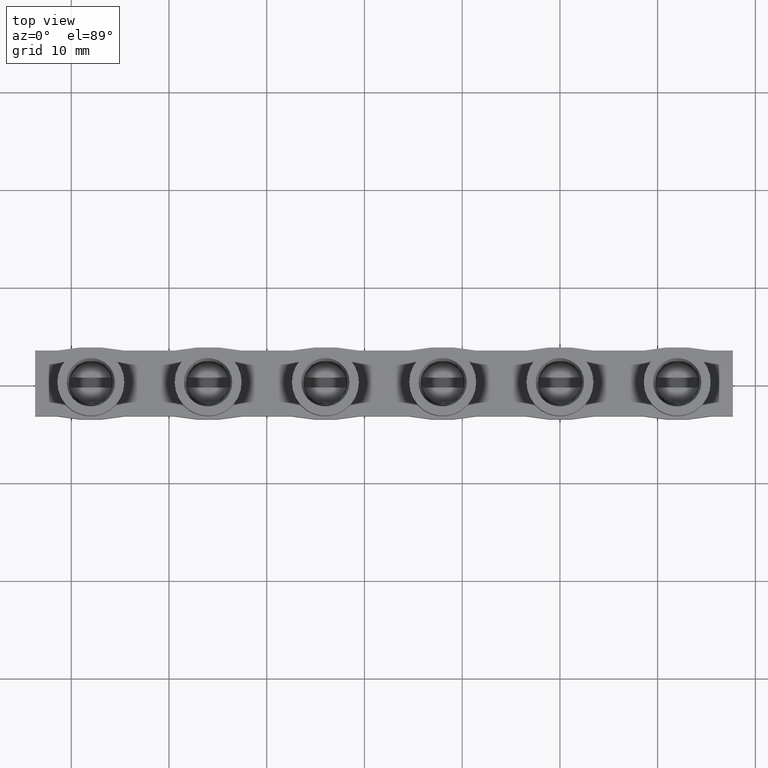
[diagram: clean part render]
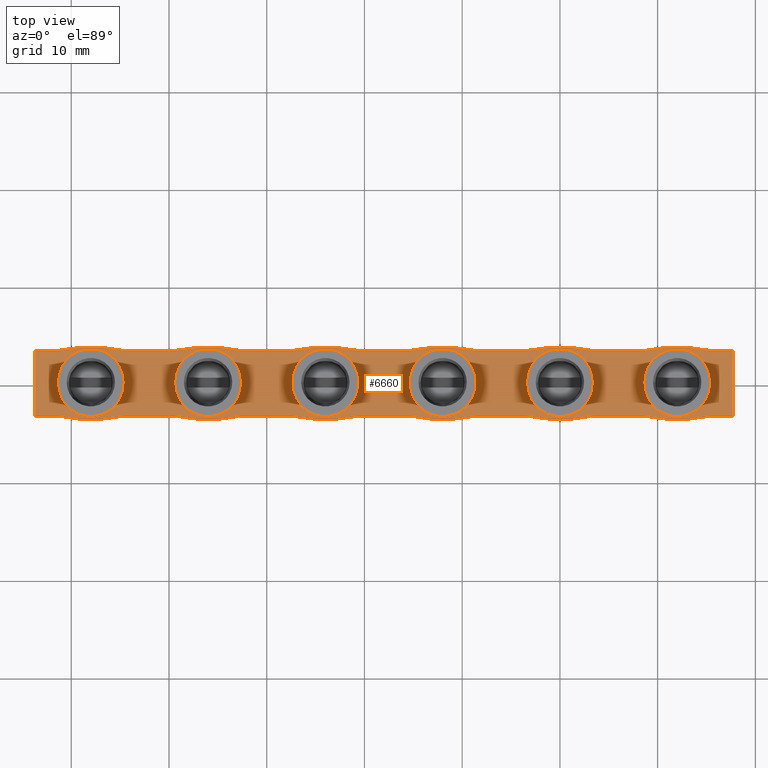
[diagram: same view with one face highlighted and labeled with its STEP entity id]
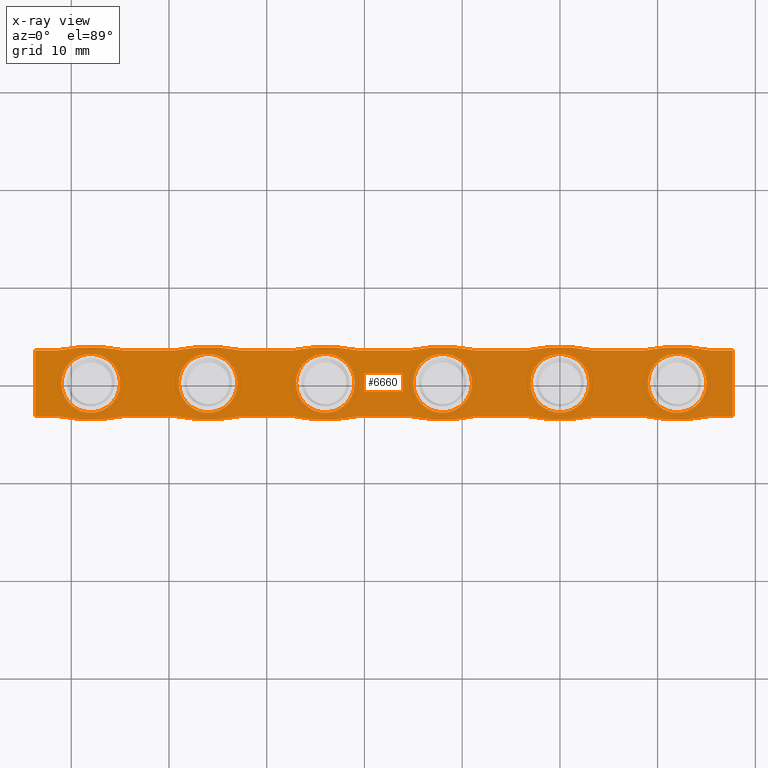
[diagram: x-ray of the same camera — body ghosted, the highlighted face saturated]
A machine part, top view. The second image highlights one B-rep face of the part: STEP entity #6660.
The next image is the same camera in x-ray: the body ghosted, the highlighted face saturated — about 0% of this face is hidden behind the body in this view.
In plain terms, the highlighted planar face has unit normal (0, 0, -1).
Its self-contained STEP definition (entity closure, byte-faithful):
#332 = FACE_BOUND ( 'NONE', #4947, .T. ) ;
#337 = FACE_BOUND ( 'NONE', #4962, .T. ) ;
#338 = FACE_OUTER_BOUND ( 'NONE', #4909, .T. ) ;
#340 = FACE_BOUND ( 'NONE', #4928, .T. ) ;
#369 = FACE_BOUND ( 'NONE', #4949, .T. ) ;
#384 = FACE_BOUND ( 'NONE', #4922, .T. ) ;
#388 = CARTESIAN_POINT ( 'NONE',  ( -89.85000000000005100, -3.349999999999926400, -0.9000000000000014700 ) ) ;
#396 = PLANE ( 'NONE',  #7241 ) ;
#413 = FACE_BOUND ( 'NONE', #4934, .T. ) ;
#414 = DIRECTION ( 'NONE',  ( 0.0000000000000000000, 0.0000000000000000000, -1.000000000000000000 ) ) ;
#415 = DIRECTION ( 'NONE',  ( -1.000000000000000000, 0.0000000000000000000, -0.0000000000000000000 ) ) ;
#854 = DIRECTION ( 'NONE',  ( -1.000000000000000000, 0.0000000000000000000, 0.0000000000000000000 ) ) ;
#857 = DIRECTION ( 'NONE',  ( 0.0000000000000000000, 0.0000000000000000000, 1.000000000000000000 ) ) ;
#876 = CARTESIAN_POINT ( 'NONE',  ( 0.0000000000000000000, 0.0000000000000000000, -0.9000000000000014700 ) ) ;
#1430 = CARTESIAN_POINT ( 'NONE',  ( -8.552899769370284800, -3.349999999999917900, -0.9000000000000014700 ) ) ;
#1440 = CARTESIAN_POINT ( 'NONE',  ( 15.00000000000000000, 1.833357540569354400E-015, -0.9000000000000014700 ) ) ;
#1464 = CARTESIAN_POINT ( 'NONE',  ( 8.573266861864922800, 3.350000000000086200, -0.9000000000000014700 ) ) ;
#1479 = CARTESIAN_POINT ( 'NONE',  ( -3.447100230629700900, -3.349999999999916600, -0.9000000000000014700 ) ) ;
#1483 = CARTESIAN_POINT ( 'NONE',  ( 8.552899769370297300, -3.349999999999914800, -0.9000000000000014700 ) ) ;
#1491 = CARTESIAN_POINT ( 'NONE',  ( -9.000000000000001800, -1.921897426749560600E-015, -0.9000000000000014700 ) ) ;
#1495 = CARTESIAN_POINT ( 'NONE',  ( -39.42673313813508400, 3.350000000000077800, -0.9000000000000014700 ) ) ;
#1506 = CARTESIAN_POINT ( 'NONE',  ( -20.55289976937028500, -3.349999999999920200, -0.9000000000000014700 ) ) ;
#1513 = CARTESIAN_POINT ( 'NONE',  ( -15.00000000000000000, -2.289291466493766400E-015, -0.9000000000000014700 ) ) ;
#1515 = CARTESIAN_POINT ( 'NONE',  ( -51.42673313813508400, 3.350000000000075600, -0.9000000000000014700 ) ) ;
#1516 = CARTESIAN_POINT ( 'NONE',  ( -44.57326686186492300, 3.350000000000076500, -0.9000000000000014700 ) ) ;
#1528 = CARTESIAN_POINT ( 'NONE',  ( -15.44710023062970100, -3.349999999999918400, -0.9000000000000014700 ) ) ;
#1533 = CARTESIAN_POINT ( 'NONE',  ( 3.426733138135080300, 3.350000000000085400, -0.9000000000000014700 ) ) ;
#1535 = CARTESIAN_POINT ( 'NONE',  ( -3.426733138135080300, 3.350000000000084500, -0.9000000000000014700 ) ) ;
#1544 = CARTESIAN_POINT ( 'NONE',  ( -27.42673313813508100, 3.350000000000080000, -0.9000000000000014700 ) ) ;
#1547 = CARTESIAN_POINT ( 'NONE',  ( 17.69999999999921800, -3.349999999999913900, -0.9000000000000014700 ) ) ;
#1561 = CARTESIAN_POINT ( 'NONE',  ( -39.44710023062970800, -3.349999999999923300, -0.9000000000000014700 ) ) ;
#1563 = CARTESIAN_POINT ( 'NONE',  ( -32.57326686186492300, 3.350000000000078700, -0.9000000000000014700 ) ) ;
#1570 = CARTESIAN_POINT ( 'NONE',  ( 17.69999999999921800, 3.350000000000087100, -0.9000000000000014700 ) ) ;
#1571 = CARTESIAN_POINT ( 'NONE',  ( -15.42673313813508100, 3.350000000000082700, -0.9000000000000014700 ) ) ;
#1575 = CARTESIAN_POINT ( 'NONE',  ( -32.55289976937028500, -3.349999999999922400, -0.9000000000000014700 ) ) ;
#1576 = CARTESIAN_POINT ( 'NONE',  ( -44.55289976937028500, -3.349999999999924600, -0.9000000000000014700 ) ) ;
#1577 = CARTESIAN_POINT ( 'NONE',  ( -51.44710023062970800, -3.349999999999925500, -0.9000000000000014700 ) ) ;
#1581 = CARTESIAN_POINT ( 'NONE',  ( 15.44710023062971500, -3.349999999999914400, -0.9000000000000014700 ) ) ;
#1588 = CARTESIAN_POINT ( 'NONE',  ( -53.69999999999999600, -3.349999999999925500, -0.9000000000000014700 ) ) ;
#1590 = CARTESIAN_POINT ( 'NONE',  ( -8.573266861864919300, 3.350000000000083600, -0.9000000000000014700 ) ) ;
#1595 = CARTESIAN_POINT ( 'NONE',  ( -53.69999999999999600, 3.350000000000075600, -0.9000000000000014700 ) ) ;
#1597 = CARTESIAN_POINT ( 'NONE',  ( -27.44710023062970100, -3.349999999999921000, -0.9000000000000014700 ) ) ;
#1599 = CARTESIAN_POINT ( 'NONE',  ( -20.57326686186491900, 3.350000000000080900, -0.9000000000000014700 ) ) ;
#1600 = CARTESIAN_POINT ( 'NONE',  ( 15.42673313813508100, 3.350000000000086700, -0.9000000000000014700 ) ) ;
#1602 = CARTESIAN_POINT ( 'NONE',  ( 3.447100230629714700, -3.349999999999915700, -0.9000000000000014700 ) ) ;
#1775 = CARTESIAN_POINT ( 'NONE',  ( -45.00000000000000000, -8.789771826230860200E-015, -0.9000000000000014700 ) ) ;
#1794 = CARTESIAN_POINT ( 'NONE',  ( -21.00000000000000000, -4.211188893243326600E-015, -0.9000000000000014700 ) ) ;
#1821 = CARTESIAN_POINT ( 'NONE',  ( -2.999999999999999100, 0.0000000000000000000, -0.9000000000000014700 ) ) ;
#1824 = CARTESIAN_POINT ( 'NONE',  ( -51.00000000000000700, -9.157165865975065600E-015, -0.9000000000000014700 ) ) ;
#1825 = CARTESIAN_POINT ( 'NONE',  ( 2.999999999999999100, 3.673940397442058900E-016, -0.9000000000000014700 ) ) ;
#1840 = CARTESIAN_POINT ( 'NONE',  ( -39.00000000000000700, -6.867874399481300400E-015, -0.9000000000000014700 ) ) ;
#1848 = CARTESIAN_POINT ( 'NONE',  ( -33.00000000000000000, -6.500480359737095000E-015, -0.9000000000000014700 ) ) ;
#1877 = CARTESIAN_POINT ( 'NONE',  ( 9.000000000000001800, 1.465963500825148300E-015, -0.9000000000000014700 ) ) ;
#1883 = CARTESIAN_POINT ( 'NONE',  ( -27.00000000000000000, -4.578582932987532800E-015, -0.9000000000000014700 ) ) ;
#1933 = DIRECTION ( 'NONE',  ( -1.000000000000000000, 0.0000000000000000000, 0.0000000000000000000 ) ) ;
#1940 = DIRECTION ( 'NONE',  ( 0.0000000000000000000, 0.0000000000000000000, 1.000000000000000000 ) ) ;
#1942 = CARTESIAN_POINT ( 'NONE',  ( -12.00000000000000000, -2.289291466493766400E-015, -0.9000000000000014700 ) ) ;
#1950 = DIRECTION ( 'NONE',  ( 0.0000000000000000000, 0.0000000000000000000, 1.000000000000000000 ) ) ;
#1976 = DIRECTION ( 'NONE',  ( -1.000000000000000000, 0.0000000000000000000, 0.0000000000000000000 ) ) ;
#1979 = CARTESIAN_POINT ( 'NONE',  ( 12.00000000000000000, 1.465963500825148300E-015, -0.9000000000000014700 ) ) ;
#1982 = LINE ( 'NONE', #1987, #8015 ) ;
#1983 = DIRECTION ( 'NONE',  ( 1.000000000000000000, 1.245679091791856200E-016, -0.0000000000000000000 ) ) ;
#1987 = CARTESIAN_POINT ( 'NONE',  ( 4.150000000000007500, -3.349999999999916200, -0.9000000000000014700 ) ) ;
#2031 = DIRECTION ( 'NONE',  ( 1.000000000000000000, -1.064373106204044800E-014, 0.0000000000000000000 ) ) ;
#2032 = DIRECTION ( 'NONE',  ( -0.0000000000000000000, -0.0000000000000000000, -1.000000000000000000 ) ) ;
#2033 = DIRECTION ( 'NONE',  ( 0.0000000000000000000, 0.0000000000000000000, -1.000000000000000000 ) ) ;
#2039 = CARTESIAN_POINT ( 'NONE',  ( -36.00000000000000700, 13.45000000000007700, -0.9000000000000014700 ) ) ;
#2043 = CARTESIAN_POINT ( 'NONE',  ( -48.00000000000000000, 13.45000000000007600, -0.9000000000000014700 ) ) ;
#2047 = DIRECTION ( 'NONE',  ( -1.000000000000000000, 0.0000000000000000000, 0.0000000000000000000 ) ) ;
#2048 = DIRECTION ( 'NONE',  ( 0.0000000000000000000, 0.0000000000000000000, -1.000000000000000000 ) ) ;
#2051 = CARTESIAN_POINT ( 'NONE',  ( -36.00000000000000700, -13.25000000000035200, -0.9000000000000014700 ) ) ;
#2052 = DIRECTION ( 'NONE',  ( -1.000000000000000000, 0.0000000000000000000, 0.0000000000000000000 ) ) ;
#2055 = LINE ( 'NONE', #2057, #8072 ) ;
#2057 = CARTESIAN_POINT ( 'NONE',  ( 28.15000000000000900, -3.349999999999912600, -0.9000000000000014700 ) ) ;
#2062 = LINE ( 'NONE', #2082, #8058 ) ;
#2065 = DIRECTION ( 'NONE',  ( 0.0000000000000000000, 0.0000000000000000000, -1.000000000000000000 ) ) ;
#2066 = DIRECTION ( 'NONE',  ( 1.000000000000000000, 1.245679091791856200E-016, -0.0000000000000000000 ) ) ;
#2069 = DIRECTION ( 'NONE',  ( -1.000000000000000000, 0.0000000000000000000, 0.0000000000000000000 ) ) ;
#2070 = CARTESIAN_POINT ( 'NONE',  ( 12.00000000000000400, 13.45000000000008600, -0.9000000000000014700 ) ) ;
#2072 = LINE ( 'NONE', #2092, #8126 ) ;
#2078 = CARTESIAN_POINT ( 'NONE',  ( -31.84999999999999100, 3.350000000000078200, -0.9000000000000014700 ) ) ;
#2081 = DIRECTION ( 'NONE',  ( -1.000000000000000000, -1.245679091791856200E-016, -0.0000000000000000000 ) ) ;
#2082 = CARTESIAN_POINT ( 'NONE',  ( -7.849999999999992500, -3.349999999999918400, -0.9000000000000014700 ) ) ;
#2083 = DIRECTION ( 'NONE',  ( 0.0000000000000000000, 0.0000000000000000000, -1.000000000000000000 ) ) ;
#2085 = DIRECTION ( 'NONE',  ( 0.0000000000000000000, 0.0000000000000000000, -1.000000000000000000 ) ) ;
#2089 = LINE ( 'NONE', #2078, #8152 ) ;
#2091 = DIRECTION ( 'NONE',  ( -1.000000000000000000, 0.0000000000000000000, 0.0000000000000000000 ) ) ;
#2092 = CARTESIAN_POINT ( 'NONE',  ( -7.849999999999992500, 3.350000000000082700, -0.9000000000000014700 ) ) ;
#2095 = DIRECTION ( 'NONE',  ( -1.000000000000000000, 0.0000000000000000000, 0.0000000000000000000 ) ) ;
#2100 = DIRECTION ( 'NONE',  ( -1.000000000000000000, -1.245679091791856200E-016, -0.0000000000000000000 ) ) ;
#2101 = LINE ( 'NONE', #2118, #8103 ) ;
#2106 = CARTESIAN_POINT ( 'NONE',  ( 3.469446951953614200E-015, 13.45000000000008500, -0.9000000000000014700 ) ) ;
#2108 = DIRECTION ( 'NONE',  ( 1.000000000000000000, 1.245679091791856200E-016, -0.0000000000000000000 ) ) ;
#2111 = CARTESIAN_POINT ( 'NONE',  ( -11.99999999999999600, 13.45000000000008300, -0.9000000000000014700 ) ) ;
#2118 = CARTESIAN_POINT ( 'NONE',  ( 4.150000000000007500, -3.349999999999916200, -0.9000000000000014700 ) ) ;
#2122 = CARTESIAN_POINT ( 'NONE',  ( 0.0000000000000000000, 0.0000000000000000000, -0.9000000000000014700 ) ) ;
#2124 = DIRECTION ( 'NONE',  ( -1.000000000000000000, 0.0000000000000000000, 0.0000000000000000000 ) ) ;
#2126 = DIRECTION ( 'NONE',  ( 1.000000000000000000, 1.245679091791856200E-016, -0.0000000000000000000 ) ) ;
#2137 = DIRECTION ( 'NONE',  ( 0.0000000000000000000, 0.0000000000000000000, 1.000000000000000000 ) ) ;
#2138 = LINE ( 'NONE', #2154, #8119 ) ;
#2141 = DIRECTION ( 'NONE',  ( 1.000000000000000000, 1.245679091791856200E-016, -0.0000000000000000000 ) ) ;
#2142 = LINE ( 'NONE', #2165, #8146 ) ;
#2154 = CARTESIAN_POINT ( 'NONE',  ( -19.84999999999999800, -3.349999999999920600, -0.9000000000000014700 ) ) ;
#2162 = DIRECTION ( 'NONE',  ( -1.000000000000000000, 0.0000000000000000000, 0.0000000000000000000 ) ) ;
#2163 = DIRECTION ( 'NONE',  ( 1.000000000000000000, 1.245679091791856200E-016, -0.0000000000000000000 ) ) ;
#2164 = CARTESIAN_POINT ( 'NONE',  ( -23.99999999999999600, -13.25000000000035000, -0.9000000000000014700 ) ) ;
#2165 = CARTESIAN_POINT ( 'NONE',  ( -31.84999999999999100, -3.349999999999922800, -0.9000000000000014700 ) ) ;
#2170 = DIRECTION ( 'NONE',  ( 0.0000000000000000000, 0.0000000000000000000, -1.000000000000000000 ) ) ;
#2171 = DIRECTION ( 'NONE',  ( -1.000000000000000000, 0.0000000000000000000, 0.0000000000000000000 ) ) ;
#2174 = CARTESIAN_POINT ( 'NONE',  ( -12.00000000000000000, -2.289291466493766400E-015, -0.9000000000000014700 ) ) ;
#2176 = DIRECTION ( 'NONE',  ( -1.000000000000000000, -1.245679091791856200E-016, -0.0000000000000000000 ) ) ;
#2177 = CARTESIAN_POINT ( 'NONE',  ( -23.99999999999999600, 13.45000000000007900, -0.9000000000000014700 ) ) ;
#2189 = DIRECTION ( 'NONE',  ( 0.0000000000000000000, 0.0000000000000000000, 1.000000000000000000 ) ) ;
#2191 = DIRECTION ( 'NONE',  ( -1.000000000000000000, -1.245679091791856200E-016, -0.0000000000000000000 ) ) ;
#2195 = CARTESIAN_POINT ( 'NONE',  ( 4.150000000000007500, 3.350000000000084900, -0.9000000000000014700 ) ) ;
#2196 = LINE ( 'NONE', #2195, #8116 ) ;
#2198 = LINE ( 'NONE', #2203, #8121 ) ;
#2203 = CARTESIAN_POINT ( 'NONE',  ( 28.15000000000000900, 3.350000000000088500, -0.9000000000000014700 ) ) ;
#2208 = DIRECTION ( 'NONE',  ( -1.000000000000000000, 0.0000000000000000000, 0.0000000000000000000 ) ) ;
#2219 = DIRECTION ( 'NONE',  ( -1.000000000000000000, 0.0000000000000000000, 0.0000000000000000000 ) ) ;
#2221 = CARTESIAN_POINT ( 'NONE',  ( -36.00000000000000700, -6.867874399481300400E-015, -0.9000000000000014700 ) ) ;
#2232 = CARTESIAN_POINT ( 'NONE',  ( -48.00000000000000000, -9.157165865975065600E-015, -0.9000000000000014700 ) ) ;
#2238 = DIRECTION ( 'NONE',  ( 0.0000000000000000000, 0.0000000000000000000, 1.000000000000000000 ) ) ;
#2248 = DIRECTION ( 'NONE',  ( 0.0000000000000000000, 0.0000000000000000000, 1.000000000000000000 ) ) ;
#2253 = CARTESIAN_POINT ( 'NONE',  ( -53.69999999999999600, -3.349999999999918800, -0.9000000000000014700 ) ) ;
#2265 = CARTESIAN_POINT ( 'NONE',  ( 12.00000000000000400, -13.25000000000034300, -0.9000000000000014700 ) ) ;
#2275 = DIRECTION ( 'NONE',  ( -0.0000000000000000000, -0.0000000000000000000, -1.000000000000000000 ) ) ;
#2277 = LINE ( 'NONE', #2253, #7181 ) ;
#2278 = DIRECTION ( 'NONE',  ( -0.0000000000000000000, -0.0000000000000000000, -1.000000000000000000 ) ) ;
#2280 = DIRECTION ( 'NONE',  ( 1.000000000000000000, -3.582024876648227500E-015, 0.0000000000000000000 ) ) ;
#2283 = DIRECTION ( 'NONE',  ( 2.009125974575783600E-016, -1.000000000000000000, 0.0000000000000000000 ) ) ;
#2288 = CARTESIAN_POINT ( 'NONE',  ( -11.99999999999999600, -13.25000000000034600, -0.9000000000000014700 ) ) ;
#2290 = DIRECTION ( 'NONE',  ( 1.000000000000000000, 0.0000000000000000000, 0.0000000000000000000 ) ) ;
#2291 = LINE ( 'NONE', #2320, #7202 ) ;
#2292 = DIRECTION ( 'NONE',  ( -0.0000000000000000000, -0.0000000000000000000, -1.000000000000000000 ) ) ;
#2293 = DIRECTION ( 'NONE',  ( -1.000000000000000000, -1.245679091791856200E-016, -0.0000000000000000000 ) ) ;
#2294 = CARTESIAN_POINT ( 'NONE',  ( 4.150000000000007500, 3.350000000000084900, -0.9000000000000014700 ) ) ;
#2298 = DIRECTION ( 'NONE',  ( 1.000000000000000000, 0.0000000000000000000, 0.0000000000000000000 ) ) ;
#2312 = DIRECTION ( 'NONE',  ( -0.0000000000000000000, -0.0000000000000000000, -1.000000000000000000 ) ) ;
#2313 = DIRECTION ( 'NONE',  ( -1.000000000000000000, -1.245679091791856200E-016, -0.0000000000000000000 ) ) ;
#2318 = CARTESIAN_POINT ( 'NONE',  ( 3.469446951953614200E-015, -13.25000000000034500, -0.9000000000000014700 ) ) ;
#2320 = CARTESIAN_POINT ( 'NONE',  ( 4.150000000000007500, 3.350000000000084900, -0.9000000000000014700 ) ) ;
#2321 = CARTESIAN_POINT ( 'NONE',  ( -19.84999999999999800, 3.350000000000080500, -0.9000000000000014700 ) ) ;
#2322 = LINE ( 'NONE', #2294, #7210 ) ;
#2329 = LINE ( 'NONE', #2321, #7203 ) ;
#2332 = CARTESIAN_POINT ( 'NONE',  ( 17.69999999999921800, -3.349999999999924100, -0.9000000000000014700 ) ) ;
#2351 = DIRECTION ( 'NONE',  ( -1.000000000000000000, -1.245679091791856200E-016, -0.0000000000000000000 ) ) ;
#2357 = DIRECTION ( 'NONE',  ( 0.0000000000000000000, 1.000000000000000000, 0.0000000000000000000 ) ) ;
#2362 = LINE ( 'NONE', #2332, #7220 ) ;
#3011 = CARTESIAN_POINT ( 'NONE',  ( -48.00000000000000000, -9.157165865975065600E-015, -0.9000000000000014700 ) ) ;
#3012 = DIRECTION ( 'NONE',  ( 0.0000000000000000000, 0.0000000000000000000, 1.000000000000000000 ) ) ;
#3020 = DIRECTION ( 'NONE',  ( -1.000000000000000000, 0.0000000000000000000, 0.0000000000000000000 ) ) ;
#3077 = DIRECTION ( 'NONE',  ( -1.000000000000000000, 0.0000000000000000000, 0.0000000000000000000 ) ) ;
#3099 = CARTESIAN_POINT ( 'NONE',  ( -24.00000000000000000, -4.578582932987532800E-015, -0.9000000000000014700 ) ) ;
#3102 = DIRECTION ( 'NONE',  ( 0.0000000000000000000, 0.0000000000000000000, 1.000000000000000000 ) ) ;
#3110 = DIRECTION ( 'NONE',  ( -1.000000000000000000, 0.0000000000000000000, 0.0000000000000000000 ) ) ;
#3114 = DIRECTION ( 'NONE',  ( 0.0000000000000000000, 0.0000000000000000000, 1.000000000000000000 ) ) ;
#3119 = CARTESIAN_POINT ( 'NONE',  ( -36.00000000000000700, -6.867874399481300400E-015, -0.9000000000000014700 ) ) ;
#3704 = ORIENTED_EDGE ( 'NONE', *, *, #5405, .T. ) ;
#3707 = ORIENTED_EDGE ( 'NONE', *, *, #5433, .T. ) ;
#3708 = ORIENTED_EDGE ( 'NONE', *, *, #5483, .F. ) ;
#3709 = ORIENTED_EDGE ( 'NONE', *, *, #5321, .T. ) ;
#3710 = ORIENTED_EDGE ( 'NONE', *, *, #5436, .T. ) ;
#3717 = ORIENTED_EDGE ( 'NONE', *, *, #5590, .F. ) ;
#3718 = ORIENTED_EDGE ( 'NONE', *, *, #5523, .T. ) ;
#3719 = ORIENTED_EDGE ( 'NONE', *, *, #5585, .T. ) ;
#3722 = ORIENTED_EDGE ( 'NONE', *, *, #5516, .F. ) ;
#3723 = ORIENTED_EDGE ( 'NONE', *, *, #5561, .T. ) ;
#3724 = ORIENTED_EDGE ( 'NONE', *, *, #5439, .F. ) ;
#3726 = ORIENTED_EDGE ( 'NONE', *, *, #5595, .T. ) ;
#3727 = ORIENTED_EDGE ( 'NONE', *, *, #5462, .T. ) ;
#3730 = ORIENTED_EDGE ( 'NONE', *, *, #5418, .T. ) ;
#3731 = ORIENTED_EDGE ( 'NONE', *, *, #5474, .T. ) ;
#3732 = ORIENTED_EDGE ( 'NONE', *, *, #5565, .T. ) ;
#3734 = ORIENTED_EDGE ( 'NONE', *, *, #5398, .F. ) ;
#3737 = ORIENTED_EDGE ( 'NONE', *, *, #6495, .F. ) ;
#3738 = ORIENTED_EDGE ( 'NONE', *, *, #5554, .F. ) ;
#3744 = ORIENTED_EDGE ( 'NONE', *, *, #5454, .T. ) ;
#3746 = ORIENTED_EDGE ( 'NONE', *, *, #5395, .F. ) ;
#3748 = ORIENTED_EDGE ( 'NONE', *, *, #5389, .F. ) ;
#3749 = ORIENTED_EDGE ( 'NONE', *, *, #5428, .F. ) ;
#3752 = ORIENTED_EDGE ( 'NONE', *, *, #5552, .F. ) ;
#3756 = ORIENTED_EDGE ( 'NONE', *, *, #5383, .F. ) ;
#3757 = ORIENTED_EDGE ( 'NONE', *, *, #5424, .F. ) ;
#3762 = ORIENTED_EDGE ( 'NONE', *, *, #5558, .T. ) ;
#3763 = ORIENTED_EDGE ( 'NONE', *, *, #5599, .F. ) ;
#3764 = ORIENTED_EDGE ( 'NONE', *, *, #5414, .T. ) ;
#3768 = ORIENTED_EDGE ( 'NONE', *, *, #5504, .F. ) ;
#3769 = ORIENTED_EDGE ( 'NONE', *, *, #5345, .F. ) ;
#3779 = ORIENTED_EDGE ( 'NONE', *, *, #6321, .F. ) ;
#3801 = ORIENTED_EDGE ( 'NONE', *, *, #5682, .F. ) ;
#3808 = ORIENTED_EDGE ( 'NONE', *, *, #5464, .F. ) ;
#3814 = ORIENTED_EDGE ( 'NONE', *, *, #5475, .T. ) ;
#3822 = ORIENTED_EDGE ( 'NONE', *, *, #5691, .F. ) ;
#3825 = ORIENTED_EDGE ( 'NONE', *, *, #5505, .F. ) ;
#3827 = ORIENTED_EDGE ( 'NONE', *, *, #5301, .F. ) ;
#3857 = ORIENTED_EDGE ( 'NONE', *, *, #6274, .F. ) ;
#3884 = ORIENTED_EDGE ( 'NONE', *, *, #6319, .F. ) ;
#4589 = VERTEX_POINT ( 'NONE', #1430 ) ;
#4600 = VERTEX_POINT ( 'NONE', #1440 ) ;
#4603 = VERTEX_POINT ( 'NONE', #1464 ) ;
#4614 = VERTEX_POINT ( 'NONE', #1479 ) ;
#4616 = VERTEX_POINT ( 'NONE', #1491 ) ;
#4627 = VERTEX_POINT ( 'NONE', #1506 ) ;
#4628 = VERTEX_POINT ( 'NONE', #1544 ) ;
#4632 = VERTEX_POINT ( 'NONE', #1515 ) ;
#4635 = VERTEX_POINT ( 'NONE', #1533 ) ;
#4639 = VERTEX_POINT ( 'NONE', #1483 ) ;
#4645 = VERTEX_POINT ( 'NONE', #1513 ) ;
#4654 = VERTEX_POINT ( 'NONE', #1516 ) ;
#4658 = VERTEX_POINT ( 'NONE', #1535 ) ;
#4672 = VERTEX_POINT ( 'NONE', #1528 ) ;
#4676 = VERTEX_POINT ( 'NONE', #1495 ) ;
#4679 = VERTEX_POINT ( 'NONE', #1588 ) ;
#4685 = VERTEX_POINT ( 'NONE', #1581 ) ;
#4689 = VERTEX_POINT ( 'NONE', #1563 ) ;
#4691 = VERTEX_POINT ( 'NONE', #1561 ) ;
#4692 = VERTEX_POINT ( 'NONE', #1599 ) ;
#4699 = VERTEX_POINT ( 'NONE', #1570 ) ;
#4702 = VERTEX_POINT ( 'NONE', #1576 ) ;
#4707 = VERTEX_POINT ( 'NONE', #1577 ) ;
#4708 = VERTEX_POINT ( 'NONE', #1590 ) ;
#4712 = VERTEX_POINT ( 'NONE', #1571 ) ;
#4713 = VERTEX_POINT ( 'NONE', #1595 ) ;
#4721 = VERTEX_POINT ( 'NONE', #1600 ) ;
#4723 = VERTEX_POINT ( 'NONE', #1547 ) ;
#4724 = VERTEX_POINT ( 'NONE', #1602 ) ;
#4728 = VERTEX_POINT ( 'NONE', #1575 ) ;
#4733 = VERTEX_POINT ( 'NONE', #1597 ) ;
#4909 = EDGE_LOOP ( 'NONE', ( #3707, #3756, #3723, #3763, #3730, #3718, #3727, #3746, #3744, #3748, #3764, #3708, #3726, #3749, #3709, #3757, #3710, #3734, #3704, #3719, #3814, #3722, #3731, #3738, #3762, #3752, #3732, #3717 ) ) ;
#4922 = EDGE_LOOP ( 'NONE', ( #3822, #3769 ) ) ;
#4928 = EDGE_LOOP ( 'NONE', ( #3768, #3857 ) ) ;
#4934 = EDGE_LOOP ( 'NONE', ( #3808, #3827 ) ) ;
#4947 = EDGE_LOOP ( 'NONE', ( #3724, #3737 ) ) ;
#4949 = EDGE_LOOP ( 'NONE', ( #3801, #3779 ) ) ;
#4962 = EDGE_LOOP ( 'NONE', ( #3825, #3884 ) ) ;
#5048 = VERTEX_POINT ( 'NONE', #1775 ) ;
#5054 = VERTEX_POINT ( 'NONE', #1848 ) ;
#5071 = VERTEX_POINT ( 'NONE', #1840 ) ;
#5075 = VERTEX_POINT ( 'NONE', #1825 ) ;
#5079 = VERTEX_POINT ( 'NONE', #1824 ) ;
#5098 = VERTEX_POINT ( 'NONE', #1794 ) ;
#5112 = VERTEX_POINT ( 'NONE', #1821 ) ;
#5124 = VERTEX_POINT ( 'NONE', #1883 ) ;
#5141 = VERTEX_POINT ( 'NONE', #1877 ) ;
#5301 = EDGE_CURVE ( 'NONE', #4616, #4645, #8024, .T. ) ;
#5321 = EDGE_CURVE ( 'NONE', #4589, #4614, #1982, .T. ) ;
#5345 = EDGE_CURVE ( 'NONE', #4600, #5141, #8074, .T. ) ;
#5383 = EDGE_CURVE ( 'NONE', #4676, #4689, #8056, .T. ) ;
#5389 = EDGE_CURVE ( 'NONE', #4728, #4691, #8088, .T. ) ;
#5395 = EDGE_CURVE ( 'NONE', #4702, #4707, #8062, .T. ) ;
#5398 = EDGE_CURVE ( 'NONE', #4685, #4639, #8068, .T. ) ;
#5405 = EDGE_CURVE ( 'NONE', #4685, #4723, #2055, .T. ) ;
#5414 = EDGE_CURVE ( 'NONE', #4728, #4733, #2062, .T. ) ;
#5418 = EDGE_CURVE ( 'NONE', #4632, #4713, #2089, .T. ) ;
#5424 = EDGE_CURVE ( 'NONE', #4724, #4614, #8156, .T. ) ;
#5428 = EDGE_CURVE ( 'NONE', #4589, #4672, #8129, .T. ) ;
#5433 = EDGE_CURVE ( 'NONE', #4628, #4689, #2072, .T. ) ;
#5436 = EDGE_CURVE ( 'NONE', #4724, #4639, #2101, .T. ) ;
#5439 = EDGE_CURVE ( 'NONE', #5112, #5075, #8127, .T. ) ;
#5454 = EDGE_CURVE ( 'NONE', #4702, #4691, #2138, .T. ) ;
#5462 = EDGE_CURVE ( 'NONE', #4679, #4707, #2142, .T. ) ;
#5464 = EDGE_CURVE ( 'NONE', #4645, #4616, #8155, .T. ) ;
#5474 = EDGE_CURVE ( 'NONE', #4603, #4635, #2196, .T. ) ;
#5475 = EDGE_CURVE ( 'NONE', #4699, #4721, #2198, .T. ) ;
#5483 = EDGE_CURVE ( 'NONE', #4627, #4733, #8112, .T. ) ;
#5504 = EDGE_CURVE ( 'NONE', #5079, #5048, #8163, .T. ) ;
#5505 = EDGE_CURVE ( 'NONE', #5071, #5054, #8157, .T. ) ;
#5516 = EDGE_CURVE ( 'NONE', #4603, #4721, #7193, .T. ) ;
#5523 = EDGE_CURVE ( 'NONE', #4713, #4679, #2277, .T. ) ;
#5531 = CARTESIAN_POINT ( 'NONE',  ( 12.00000000000000000, 1.465963500825148300E-015, -0.9000000000000014700 ) ) ;
#5538 = CARTESIAN_POINT ( 'NONE',  ( -24.00000000000000000, -4.578582932987532800E-015, -0.9000000000000014700 ) ) ;
#5550 = DIRECTION ( 'NONE',  ( 0.0000000000000000000, 0.0000000000000000000, 1.000000000000000000 ) ) ;
#5552 = EDGE_CURVE ( 'NONE', #4712, #4708, #7186, .T. ) ;
#5553 = DIRECTION ( 'NONE',  ( -1.000000000000000000, 0.0000000000000000000, 0.0000000000000000000 ) ) ;
#5554 = EDGE_CURVE ( 'NONE', #4658, #4635, #7187, .T. ) ;
#5558 = EDGE_CURVE ( 'NONE', #4658, #4708, #2291, .T. ) ;
#5561 = EDGE_CURVE ( 'NONE', #4676, #4654, #2329, .T. ) ;
#5565 = EDGE_CURVE ( 'NONE', #4712, #4692, #2322, .T. ) ;
#5576 = DIRECTION ( 'NONE',  ( -1.000000000000000000, 0.0000000000000000000, 0.0000000000000000000 ) ) ;
#5577 = DIRECTION ( 'NONE',  ( 0.0000000000000000000, 0.0000000000000000000, 1.000000000000000000 ) ) ;
#5585 = EDGE_CURVE ( 'NONE', #4723, #4699, #2362, .T. ) ;
#5590 = EDGE_CURVE ( 'NONE', #4628, #4692, #7216, .T. ) ;
#5595 = EDGE_CURVE ( 'NONE', #4627, #4672, #7042, .T. ) ;
#5599 = EDGE_CURVE ( 'NONE', #4632, #4654, #7248, .T. ) ;
#5682 = EDGE_CURVE ( 'NONE', #5124, #5098, #7251, .T. ) ;
#5691 = EDGE_CURVE ( 'NONE', #5141, #4600, #7343, .T. ) ;
#6274 = EDGE_CURVE ( 'NONE', #5048, #5079, #7699, .T. ) ;
#6319 = EDGE_CURVE ( 'NONE', #5054, #5071, #7764, .T. ) ;
#6321 = EDGE_CURVE ( 'NONE', #5098, #5124, #7776, .T. ) ;
#6495 = EDGE_CURVE ( 'NONE', #5075, #5112, #7898, .T. ) ;
#6660 = ADVANCED_FACE ( 'NONE', ( #332, #338, #384, #413, #369, #337, #340 ), #396, .F. ) ;
#6997 = DIRECTION ( 'NONE',  ( -0.0000000000000000000, -0.0000000000000000000, -1.000000000000000000 ) ) ;
#7008 = DIRECTION ( 'NONE',  ( 1.000000000000000000, -1.064373106204044800E-014, 0.0000000000000000000 ) ) ;
#7011 = CARTESIAN_POINT ( 'NONE',  ( 4.150000000000007500, -3.349999999999916200, -0.9000000000000014700 ) ) ;
#7021 = CARTESIAN_POINT ( 'NONE',  ( -48.00000000000000000, -13.25000000000035300, -0.9000000000000014700 ) ) ;
#7040 = DIRECTION ( 'NONE',  ( 1.000000000000000000, 0.0000000000000000000, 0.0000000000000000000 ) ) ;
#7042 = LINE ( 'NONE', #7011, #7280 ) ;
#7049 = DIRECTION ( 'NONE',  ( 1.000000000000000000, 1.245679091791856200E-016, -0.0000000000000000000 ) ) ;
#7172 = AXIS2_PLACEMENT_3D ( 'NONE', #2265, #2278, #2280 ) ;
#7181 = VECTOR ( 'NONE', #2283, 1000.000000000000000 ) ;
#7186 = CIRCLE ( 'NONE', #7196, 16.95000000000022000 ) ;
#7187 = CIRCLE ( 'NONE', #7189, 16.95000000000022000 ) ;
#7189 = AXIS2_PLACEMENT_3D ( 'NONE', #2318, #2312, #2290 ) ;
#7193 = CIRCLE ( 'NONE', #7172, 16.95000000000022000 ) ;
#7196 = AXIS2_PLACEMENT_3D ( 'NONE', #2288, #2292, #2298 ) ;
#7202 = VECTOR ( 'NONE', #2313, 1000.000000000000000 ) ;
#7203 = VECTOR ( 'NONE', #2293, 1000.000000000000000 ) ;
#7210 = VECTOR ( 'NONE', #2351, 1000.000000000000000 ) ;
#7216 = CIRCLE ( 'NONE', #7223, 16.95000000000022000 ) ;
#7220 = VECTOR ( 'NONE', #2357, 1000.000000000000000 ) ;
#7223 = AXIS2_PLACEMENT_3D ( 'NONE', #2164, #2275, #7040 ) ;
#7241 = AXIS2_PLACEMENT_3D ( 'NONE', #388, #414, #415 ) ;
#7248 = CIRCLE ( 'NONE', #7256, 16.95000000000022000 ) ;
#7251 = CIRCLE ( 'NONE', #7310, 2.999999999999999100 ) ;
#7256 = AXIS2_PLACEMENT_3D ( 'NONE', #7021, #6997, #7008 ) ;
#7280 = VECTOR ( 'NONE', #7049, 1000.000000000000000 ) ;
#7310 = AXIS2_PLACEMENT_3D ( 'NONE', #5538, #5577, #5576 ) ;
#7334 = AXIS2_PLACEMENT_3D ( 'NONE', #5531, #5550, #5553 ) ;
#7343 = CIRCLE ( 'NONE', #7334, 2.999999999999999100 ) ;
#7699 = CIRCLE ( 'NONE', #7702, 3.000000000000002700 ) ;
#7702 = AXIS2_PLACEMENT_3D ( 'NONE', #3011, #3012, #3020 ) ;
#7764 = CIRCLE ( 'NONE', #7784, 3.000000000000002700 ) ;
#7776 = CIRCLE ( 'NONE', #7804, 2.999999999999999100 ) ;
#7784 = AXIS2_PLACEMENT_3D ( 'NONE', #3119, #3114, #3110 ) ;
#7804 = AXIS2_PLACEMENT_3D ( 'NONE', #3099, #3102, #3077 ) ;
#7898 = CIRCLE ( 'NONE', #7913, 2.999999999999999100 ) ;
#7913 = AXIS2_PLACEMENT_3D ( 'NONE', #876, #857, #854 ) ;
#8015 = VECTOR ( 'NONE', #1983, 1000.000000000000000 ) ;
#8024 = CIRCLE ( 'NONE', #8027, 2.999999999999999100 ) ;
#8027 = AXIS2_PLACEMENT_3D ( 'NONE', #1942, #1940, #1933 ) ;
#8053 = AXIS2_PLACEMENT_3D ( 'NONE', #2039, #2065, #2047 ) ;
#8056 = CIRCLE ( 'NONE', #8087, 16.95000000000022000 ) ;
#8058 = VECTOR ( 'NONE', #2108, 1000.000000000000000 ) ;
#8062 = CIRCLE ( 'NONE', #8071, 17.15000000000021900 ) ;
#8063 = AXIS2_PLACEMENT_3D ( 'NONE', #2070, #2033, #2069 ) ;
#8068 = CIRCLE ( 'NONE', #8063, 17.15000000000021900 ) ;
#8071 = AXIS2_PLACEMENT_3D ( 'NONE', #2043, #2048, #2052 ) ;
#8072 = VECTOR ( 'NONE', #2066, 1000.000000000000000 ) ;
#8074 = CIRCLE ( 'NONE', #8095, 2.999999999999999100 ) ;
#8087 = AXIS2_PLACEMENT_3D ( 'NONE', #2051, #2032, #2031 ) ;
#8088 = CIRCLE ( 'NONE', #8053, 17.15000000000021900 ) ;
#8095 = AXIS2_PLACEMENT_3D ( 'NONE', #1979, #1950, #1976 ) ;
#8103 = VECTOR ( 'NONE', #2126, 1000.000000000000000 ) ;
#8112 = CIRCLE ( 'NONE', #8130, 17.15000000000021900 ) ;
#8115 = AXIS2_PLACEMENT_3D ( 'NONE', #2174, #2189, #2162 ) ;
#8116 = VECTOR ( 'NONE', #2191, 1000.000000000000000 ) ;
#8119 = VECTOR ( 'NONE', #2141, 1000.000000000000000 ) ;
#8121 = VECTOR ( 'NONE', #2176, 1000.000000000000000 ) ;
#8125 = AXIS2_PLACEMENT_3D ( 'NONE', #2106, #2085, #2091 ) ;
#8126 = VECTOR ( 'NONE', #2100, 1000.000000000000000 ) ;
#8127 = CIRCLE ( 'NONE', #8145, 2.999999999999999100 ) ;
#8129 = CIRCLE ( 'NONE', #8150, 17.15000000000021900 ) ;
#8130 = AXIS2_PLACEMENT_3D ( 'NONE', #2177, #2170, #2171 ) ;
#8145 = AXIS2_PLACEMENT_3D ( 'NONE', #2122, #2137, #2124 ) ;
#8146 = VECTOR ( 'NONE', #2163, 1000.000000000000000 ) ;
#8150 = AXIS2_PLACEMENT_3D ( 'NONE', #2111, #2083, #2095 ) ;
#8152 = VECTOR ( 'NONE', #2081, 1000.000000000000000 ) ;
#8155 = CIRCLE ( 'NONE', #8115, 2.999999999999999100 ) ;
#8156 = CIRCLE ( 'NONE', #8125, 17.15000000000021900 ) ;
#8157 = CIRCLE ( 'NONE', #8161, 3.000000000000002700 ) ;
#8161 = AXIS2_PLACEMENT_3D ( 'NONE', #2221, #2238, #2208 ) ;
#8163 = CIRCLE ( 'NONE', #8170, 3.000000000000002700 ) ;
#8170 = AXIS2_PLACEMENT_3D ( 'NONE', #2232, #2248, #2219 ) ;